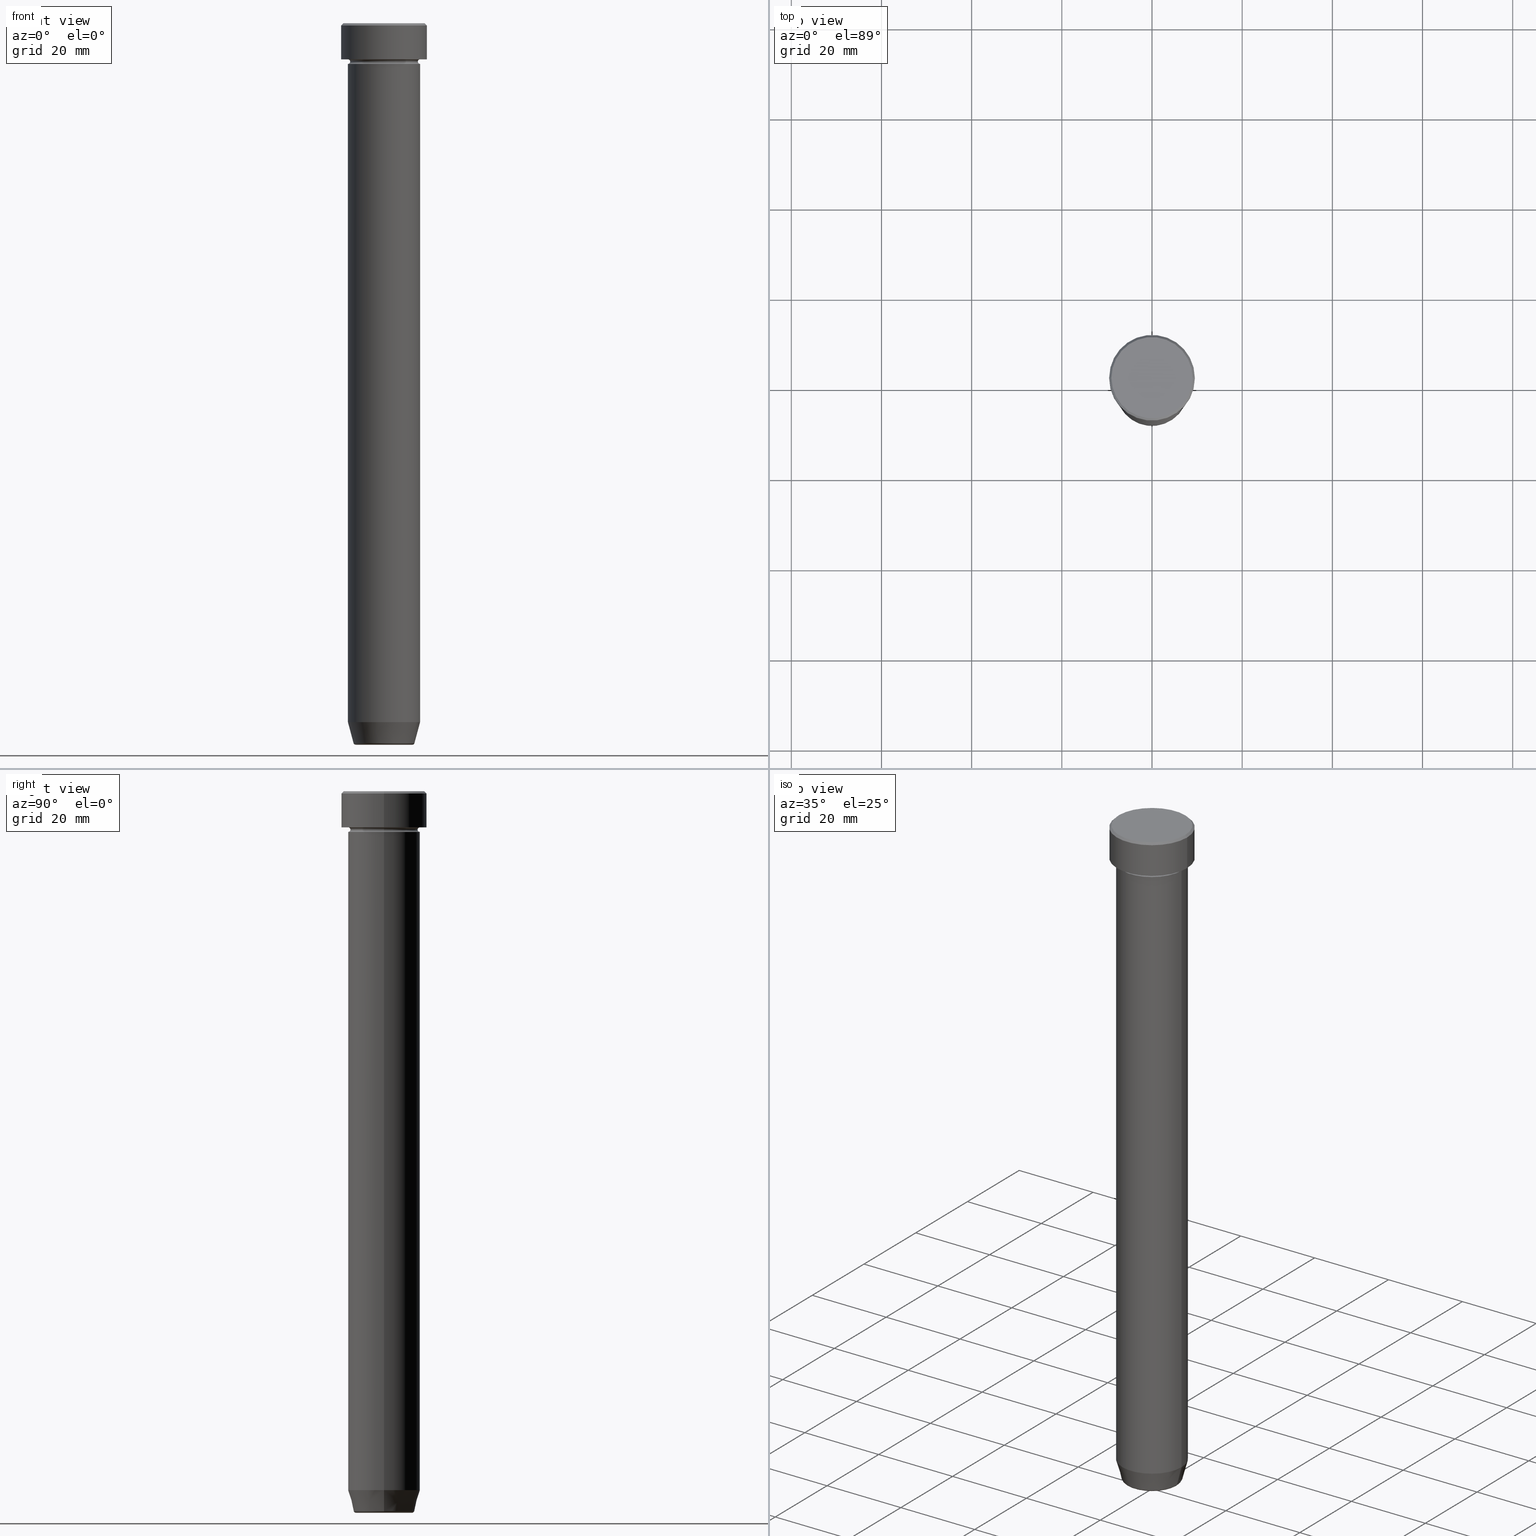
[diagram: canonical four-view strip — front | top / right | iso, engineering-drawing reading convention]
A machine part, canonical four-view strip (front | top / right | iso — engineering-drawing reading convention). The complete STEP part file that produces these views, byte-faithful:
ISO-10303-21;
HEADER;
FILE_DESCRIPTION (( 'STEP AP203' ),
    '1' );
FILE_NAME ('cf70.STEP',
    '2024-01-02T22:10:59',
    ( '' ),
    ( '' ),
    'SwSTEP 2.0',
    'SolidWorks 2019',
    '' );
FILE_SCHEMA (( 'CONFIG_CONTROL_DESIGN' ));
ENDSEC;

DATA;
#1 = DIRECTION ( 'NONE',  ( 0.000000000000000000, -0.000000000000000000, 1.000000000000000000 ) ) ;
#2 = EDGE_LOOP ( 'NONE', ( #141, #338, #187, #227 ) ) ;
#3 = APPROVAL_DATE_TIME ( #425, #263 ) ;
#4 = EDGE_CURVE ( 'NONE', #552, #230, #265, .T. ) ;
#5 = CIRCLE ( 'NONE', #16, 8.000000000000000000 ) ;
#6 = CARTESIAN_POINT ( 'NONE',  ( 8.000000000000000000, 0.000000000000000000, -154.9999999999999716 ) ) ;
#7 = ORIENTED_EDGE ( 'NONE', *, *, #578, .F. ) ;
#8 = APPROVAL_STATUS ( 'not_yet_approved' ) ;
#9 = AXIS2_PLACEMENT_3D ( 'NONE', #166, #439, #487 ) ;
#10 = LINE ( 'NONE', #169, #27 ) ;
#11 = AXIS2_PLACEMENT_3D ( 'NONE', #282, #469, #242 ) ;
#12 = VERTEX_POINT ( 'NONE', #194 ) ;
#13 = DIRECTION ( 'NONE',  ( 1.000000000000000000, 0.000000000000000000, 0.000000000000000000 ) ) ;
#14 = ADVANCED_FACE ( 'NONE', ( #288 ), #428, .T. ) ;
#15 = ORIENTED_EDGE ( 'NONE', *, *, #69, .F. ) ;
#16 = AXIS2_PLACEMENT_3D ( 'NONE', #333, #470, #521 ) ;
#17 = DIRECTION ( 'NONE',  ( 1.000000000000000000, 0.000000000000000000, 0.000000000000000000 ) ) ;
#18 = DIRECTION ( 'NONE',  ( 1.000000000000000000, 0.000000000000000000, 0.000000000000000000 ) ) ;
#19 = CARTESIAN_POINT ( 'NONE',  ( 0.000000000000000000, 0.000000000000000000, -8.500000000000000000 ) ) ;
#20 = EDGE_LOOP ( 'NONE', ( #427, #463, #328, #460 ) ) ;
#21 = ORIENTED_EDGE ( 'NONE', *, *, #273, .T. ) ;
#22 = EDGE_CURVE ( 'NONE', #556, #249, #5, .T. ) ;
#23 = CARTESIAN_POINT ( 'NONE',  ( 0.000000000000000000, 0.000000000000000000, -8.500000000000000000 ) ) ;
#24 = ORIENTED_EDGE ( 'NONE', *, *, #346, .F. ) ;
#25 = CC_DESIGN_PERSON_AND_ORGANIZATION_ASSIGNMENT ( #88, #372, ( #62 ) ) ;
#26 = LINE ( 'NONE', #117, #595 ) ;
#27 = VECTOR ( 'NONE', #323, 1000.000000000000000 ) ;
#28 = CIRCLE ( 'NONE', #270, 9.500000000000000000 ) ;
#29 = APPROVAL_DATE_TIME ( #361, #195 ) ;
#30 = CARTESIAN_POINT ( 'NONE',  ( -8.000000000000000000, 9.797174393178825657E-16, -22.00000000000000000 ) ) ;
#31 = EDGE_CURVE ( 'NONE', #453, #572, #150, .T. ) ;
#32 = CARTESIAN_POINT ( 'NONE',  ( 6.276590543854900339, 0.000000000000000000, -160.0000000000000000 ) ) ;
#33 = ORIENTED_EDGE ( 'NONE', *, *, #384, .T. ) ;
#34 = DIRECTION ( 'NONE',  ( -0.000000000000000000, -0.000000000000000000, 1.000000000000000000 ) ) ;
#35 = CIRCLE ( 'NONE', #596, 7.500000000000000000 ) ;
#36 = EDGE_CURVE ( 'NONE', #402, #475, #247, .T. ) ;
#37 = CARTESIAN_POINT ( 'NONE',  ( 0.000000000000000000, 0.000000000000000000, -8.000000000000000000 ) ) ;
#38 = DIRECTION ( 'NONE',  ( -1.224646799147353207E-16, 1.000000000000000000, 0.000000000000000000 ) ) ;
#39 = LINE ( 'NONE', #418, #196 ) ;
#40 = CARTESIAN_POINT ( 'NONE',  ( 0.000000000000000000, 0.000000000000000000, -8.500000000000000000 ) ) ;
#41 = EDGE_LOOP ( 'NONE', ( #283, #33, #410, #589 ) ) ;
#42 = DIRECTION ( 'NONE',  ( 1.000000000000000000, 0.000000000000000000, 0.000000000000000000 ) ) ;
#43 = CIRCLE ( 'NONE', #545, 9.500000000000000000 ) ;
#44 = CIRCLE ( 'NONE', #560, 0.5000000000000004441 ) ;
#45 = FACE_OUTER_BOUND ( 'NONE', #63, .T. ) ;
#46 = ORIENTED_EDGE ( 'NONE', *, *, #593, .T. ) ;
#47 = EDGE_CURVE ( 'NONE', #136, #269, #415, .T. ) ;
#48 = CARTESIAN_POINT ( 'NONE',  ( 0.000000000000000000, 0.000000000000000000, -8.500000000000000000 ) ) ;
#49 = ORIENTED_EDGE ( 'NONE', *, *, #543, .T. ) ;
#50 = DIRECTION ( 'NONE',  ( 1.000000000000000000, 0.000000000000000000, 0.000000000000000000 ) ) ;
#51 = EDGE_LOOP ( 'NONE', ( #131, #341 ) ) ;
#52 = EDGE_CURVE ( 'NONE', #532, #87, #303, .T. ) ;
#53 = CARTESIAN_POINT ( 'NONE',  ( 0.000000000000000000, 9.500000000000000000, -8.000000000000000000 ) ) ;
#54 = AXIS2_PLACEMENT_3D ( 'NONE', #262, #225, #343 ) ;
#55 = ORIENTED_EDGE ( 'NONE', *, *, #479, .T. ) ;
#56 = FACE_OUTER_BOUND ( 'NONE', #84, .T. ) ;
#57 = DIRECTION ( 'NONE',  ( 1.000000000000000000, 0.000000000000000000, 0.000000000000000000 ) ) ;
#58 = FACE_OUTER_BOUND ( 'NONE', #51, .T. ) ;
#59 = FACE_OUTER_BOUND ( 'NONE', #2, .T. ) ;
#60 = DIRECTION ( 'NONE',  ( -0.000000000000000000, -0.000000000000000000, 1.000000000000000000 ) ) ;
#61 = TOROIDAL_SURFACE ( 'NONE', #397, 8.000000000000000000, 0.5000000000000000000 ) ;
#62 = PRODUCT_DEFINITION_FORMATION_WITH_SPECIFIED_SOURCE ( 'LIBOVOLN�', '', #149, .NOT_KNOWN. ) ;
#63 = EDGE_LOOP ( 'NONE', ( #345, #98 ) ) ;
#64 = ADVANCED_FACE ( 'NONE', ( #59 ), #107, .T. ) ;
#65 = ORIENTED_EDGE ( 'NONE', *, *, #111, .F. ) ;
#66 = PERSON_AND_ORGANIZATION_ROLE ( 'creator' ) ;
#67 = ORIENTED_EDGE ( 'NONE', *, *, #292, .F. ) ;
#68 = APPLICATION_PROTOCOL_DEFINITION ( 'international standard', 'config_control_design', 1994, #153 ) ;
#69 = EDGE_CURVE ( 'NONE', #74, #556, #301, .T. ) ;
#70 = FACE_OUTER_BOUND ( 'NONE', #370, .T. ) ;
#71 = VECTOR ( 'NONE', #414, 999.9999999999998863 ) ;
#72 = TOROIDAL_SURFACE ( 'NONE', #503, 8.000000000000000000, 0.5000000000000000000 ) ;
#73 = CARTESIAN_POINT ( 'NONE',  ( -8.000000000000000000, 9.797174393178825657E-16, 0.000000000000000000 ) ) ;
#74 = VERTEX_POINT ( 'NONE', #158 ) ;
#75 = FACE_OUTER_BOUND ( 'NONE', #458, .T. ) ;
#76 = VECTOR ( 'NONE', #434, 1000.000000000000000 ) ;
#77 = CARTESIAN_POINT ( 'NONE',  ( 0.000000000000000000, 0.000000000000000000, 0.000000000000000000 ) ) ;
#78 = AXIS2_PLACEMENT_3D ( 'NONE', #401, #354, #213 ) ;
#79 = EDGE_CURVE ( 'NONE', #377, #402, #334, .T. ) ;
#80 = PERSON_AND_ORGANIZATION ( #585, #494 ) ;
#81 = CARTESIAN_POINT ( 'NONE',  ( -7.500000000000000000, 9.491012693391985815E-16, -8.500000000000000000 ) ) ;
#82 = DIRECTION ( 'NONE',  ( -1.000000000000000000, 1.224646799147353454E-16, 0.000000000000000000 ) ) ;
#83 = AXIS2_PLACEMENT_3D ( 'NONE', #243, #207, #482 ) ;
#84 = EDGE_LOOP ( 'NONE', ( #530, #321 ) ) ;
#85 = DIRECTION ( 'NONE',  ( 1.000000000000000000, 0.000000000000000000, 0.000000000000000000 ) ) ;
#86 = CC_DESIGN_PERSON_AND_ORGANIZATION_ASSIGNMENT ( #406, #66, ( #298 ) ) ;
#87 = VERTEX_POINT ( 'NONE', #344 ) ;
#88 = PERSON_AND_ORGANIZATION ( #585, #494 ) ;
#89 = VECTOR ( 'NONE', #252, 1000.000000000000000 ) ;
#90 = CIRCLE ( 'NONE', #483, 7.500000000000000000 ) ;
#91 = CARTESIAN_POINT ( 'NONE',  ( 0.000000000000000000, 0.000000000000000000, -22.00000000000000000 ) ) ;
#92 = ORIENTED_EDGE ( 'NONE', *, *, #52, .F. ) ;
#93 = CARTESIAN_POINT ( 'NONE',  ( 8.000000000000000000, 0.000000000000000000, -8.500000000000000000 ) ) ;
#94 = ORIENTED_EDGE ( 'NONE', *, *, #253, .F. ) ;
#95 = PERSON_AND_ORGANIZATION ( #585, #494 ) ;
#96 = ADVANCED_FACE ( 'NONE', ( #70 ), #254, .T. ) ;
#97 = DIRECTION ( 'NONE',  ( 0.000000000000000000, 0.000000000000000000, -1.000000000000000000 ) ) ;
#98 = ORIENTED_EDGE ( 'NONE', *, *, #186, .F. ) ;
#99 = AXIS2_PLACEMENT_3D ( 'NONE', #77, #295, #591 ) ;
#100 = FACE_OUTER_BOUND ( 'NONE', #509, .T. ) ;
#101 = LOCAL_TIME ( 23, 10, 59.00000000000000000, #393 ) ;
#102 = DIRECTION ( 'NONE',  ( 1.000000000000000000, 0.000000000000000000, 0.000000000000000000 ) ) ;
#103 = CARTESIAN_POINT ( 'NONE',  ( 0.000000000000000000, 0.000000000000000000, -8.500000000000000000 ) ) ;
#104 = ORIENTED_EDGE ( 'NONE', *, *, #253, .T. ) ;
#105 = CARTESIAN_POINT ( 'NONE',  ( -8.000000000000000000, 9.797174393178825657E-16, -154.9999999999999716 ) ) ;
#106 = ADVANCED_FACE ( 'NONE', ( #75 ), #122, .T. ) ;
#107 = CYLINDRICAL_SURFACE ( 'NONE', #83, 8.000000000000000000 ) ;
#108 = FACE_OUTER_BOUND ( 'NONE', #155, .T. ) ;
#109 = ORIENTED_EDGE ( 'NONE', *, *, #47, .T. ) ;
#110 = ORIENTED_EDGE ( 'NONE', *, *, #497, .T. ) ;
#111 = EDGE_CURVE ( 'NONE', #302, #413, #234, .T. ) ;
#112 = COORDINATED_UNIVERSAL_TIME_OFFSET ( 1, 0, .AHEAD. ) ;
#113 = DIRECTION ( 'NONE',  ( -1.000000000000000000, 0.000000000000000000, -0.000000000000000000 ) ) ;
#114 = CARTESIAN_POINT ( 'NONE',  ( 8.000000000000000000, 9.797174393178825657E-16, -8.500000000000000000 ) ) ;
#115 = DIRECTION ( 'NONE',  ( -0.000000000000000000, -0.000000000000000000, 1.000000000000000000 ) ) ;
#116 = AXIS2_PLACEMENT_3D ( 'NONE', #232, #451, #555 ) ;
#117 = CARTESIAN_POINT ( 'NONE',  ( -8.000000000000000000, 9.797174393178825657E-16, 0.000000000000000000 ) ) ;
#118 = ORIENTED_EDGE ( 'NONE', *, *, #472, .F. ) ;
#119 = CARTESIAN_POINT ( 'NONE',  ( -6.660254037844377528, 8.156458788954351887E-16, -160.0000000000000000 ) ) ;
#120 = EDGE_CURVE ( 'NONE', #566, #249, #495, .T. ) ;
#121 = CARTESIAN_POINT ( 'NONE',  ( 0.000000000000000000, 0.000000000000000000, -160.0000000000000000 ) ) ;
#122 = CONICAL_SURFACE ( 'NONE', #296, 6.660254037844377528, 0.2617993877991494633 ) ;
#123 = CC_DESIGN_SECURITY_CLASSIFICATION ( #476, ( #62 ) ) ;
#124 = CYLINDRICAL_SURFACE ( 'NONE', #297, 8.000000000000000000 ) ;
#125 = EDGE_LOOP ( 'NONE', ( #129, #109 ) ) ;
#126 = DATE_TIME_ROLE ( 'creation_date' ) ;
#127 = ADVANCED_FACE ( 'NONE', ( #167 ), #350, .T. ) ;
#128 = FACE_BOUND ( 'NONE', #367, .T. ) ;
#129 = ORIENTED_EDGE ( 'NONE', *, *, #281, .T. ) ;
#130 = DIRECTION ( 'NONE',  ( 0.000000000000000000, 0.000000000000000000, -1.000000000000000000 ) ) ;
#131 = ORIENTED_EDGE ( 'NONE', *, *, #52, .T. ) ;
#132 = COORDINATED_UNIVERSAL_TIME_OFFSET ( 1, 0, .AHEAD. ) ;
#133 = CIRCLE ( 'NONE', #256, 0.5000000000000004441 ) ;
#134 = LOCAL_TIME ( 23, 10, 59.00000000000000000, #112 ) ;
#135 = DIRECTION ( 'NONE',  ( 1.000000000000000000, 0.000000000000000000, 0.000000000000000000 ) ) ;
#136 = VERTEX_POINT ( 'NONE', #30 ) ;
#137 = FACE_OUTER_BOUND ( 'NONE', #579, .T. ) ;
#138 = ORIENTED_EDGE ( 'NONE', *, *, #587, .T. ) ;
#139 = CLOSED_SHELL ( 'NONE', ( #538, #14, #96, #165, #568, #106, #337, #438 ) ) ;
#140 = DIRECTION ( 'NONE',  ( -0.000000000000000000, -0.000000000000000000, 1.000000000000000000 ) ) ;
#141 = ORIENTED_EDGE ( 'NONE', *, *, #203, .F. ) ;
#142 = VECTOR ( 'NONE', #162, 1000.000000000000000 ) ;
#143 = DIRECTION ( 'NONE',  ( 1.000000000000000000, 0.000000000000000000, 0.000000000000000000 ) ) ;
#144 = LOCAL_TIME ( 23, 10, 59.00000000000000000, #567 ) ;
#145 = CARTESIAN_POINT ( 'NONE',  ( 0.000000000000000000, 0.000000000000000000, -22.00000000000000000 ) ) ;
#146 = EDGE_CURVE ( 'NONE', #552, #74, #307, .T. ) ;
#147 = CARTESIAN_POINT ( 'NONE',  ( -6.276590543854900339, 7.982336011935118383E-16, -160.0000000000000000 ) ) ;
#148 = ORIENTED_EDGE ( 'NONE', *, *, #400, .T. ) ;
#149 = PRODUCT ( 'cf70', 'cf70', '', ( #205 ) ) ;
#150 = CIRCLE ( 'NONE', #335, 8.000000000000000000 ) ;
#151 = DIRECTION ( 'NONE',  ( -0.000000000000000000, -0.000000000000000000, 1.000000000000000000 ) ) ;
#152 = DIRECTION ( 'NONE',  ( 1.000000000000000000, 0.000000000000000000, 0.000000000000000000 ) ) ;
#153 = APPLICATION_CONTEXT ( 'configuration controlled 3d designs of mechanical parts and assemblies' ) ;
#154 = DIRECTION ( 'NONE',  ( -1.000000000000000000, 0.000000000000000000, -0.000000000000000000 ) ) ;
#155 = EDGE_LOOP ( 'NONE', ( #486, #576, #233, #94 ) ) ;
#156 = EDGE_CURVE ( 'NONE', #572, #453, #467, .T. ) ;
#157 = CARTESIAN_POINT ( 'NONE',  ( 0.000000000000000000, 0.000000000000000000, -154.9999999999999716 ) ) ;
#158 = CARTESIAN_POINT ( 'NONE',  ( -6.759553456999434218, 9.037619948979304241E-16, -159.6294095225512422 ) ) ;
#159 = APPROVAL ( #8, 'NEUR�EN�' ) ;
#160 = DIRECTION ( 'NONE',  ( 0.000000000000000000, 0.000000000000000000, 1.000000000000000000 ) ) ;
#161 = FACE_OUTER_BOUND ( 'NONE', #512, .T. ) ;
#162 = DIRECTION ( 'NONE',  ( -0.000000000000000000, -0.000000000000000000, 1.000000000000000000 ) ) ;
#163 = CIRCLE ( 'NONE', #316, 0.5000000000000004441 ) ;
#164 = AXIS2_PLACEMENT_3D ( 'NONE', #575, #466, #245 ) ;
#165 = ADVANCED_FACE ( 'NONE', ( #399 ), #394, .F. ) ;
#166 = CARTESIAN_POINT ( 'NONE',  ( 0.000000000000000000, 0.000000000000000000, -8.000000000000000000 ) ) ;
#167 = FACE_OUTER_BOUND ( 'NONE', #258, .T. ) ;
#168 = CARTESIAN_POINT ( 'NONE',  ( 6.759553456999434218, 0.000000000000000000, -159.6294095225512422 ) ) ;
#169 = CARTESIAN_POINT ( 'NONE',  ( 9.500000000000000000, 0.000000000000000000, 0.000000000000000000 ) ) ;
#170 = VERTEX_POINT ( 'NONE', #304 ) ;
#171 = AXIS2_PLACEMENT_3D ( 'NONE', #37, #592, #355 ) ;
#172 = EDGE_CURVE ( 'NONE', #475, #353, #43, .T. ) ;
#173 = CIRCLE ( 'NONE', #546, 8.000000000000000000 ) ;
#174 = DIRECTION ( 'NONE',  ( -0.000000000000000000, -0.000000000000000000, 1.000000000000000000 ) ) ;
#175 = CARTESIAN_POINT ( 'NONE',  ( -8.000000000000000000, 0.000000000000000000, -8.000000000000000000 ) ) ;
#176 = ORIENTED_EDGE ( 'NONE', *, *, #4, .T. ) ;
#177 = APPROVAL_STATUS ( 'not_yet_approved' ) ;
#178 = CARTESIAN_POINT ( 'NONE',  ( 9.500000000000000000, 0.000000000000000000, -0.4999999999999968914 ) ) ;
#179 = EDGE_LOOP ( 'NONE', ( #199, #419, #349, #424 ) ) ;
#180 = PERSON_AND_ORGANIZATION_ROLE ( 'creator' ) ;
#181 = FACE_OUTER_BOUND ( 'NONE', #598, .T. ) ;
#182 = ORIENTED_EDGE ( 'NONE', *, *, #146, .T. ) ;
#183 = APPLICATION_CONTEXT ( 'configuration controlled 3d designs of mechanical parts and assemblies' ) ;
#184 = AXIS2_PLACEMENT_3D ( 'NONE', #559, #362, #274 ) ;
#185 = LINE ( 'NONE', #229, #71 ) ;
#186 = EDGE_CURVE ( 'NONE', #402, #377, #206, .T. ) ;
#187 = ORIENTED_EDGE ( 'NONE', *, *, #231, .T. ) ;
#188 = APPROVAL_ROLE ( '' ) ;
#189 = PLANE ( 'NONE',  #280 ) ;
#190 = PRODUCT_DEFINITION_SHAPE ( 'NONE', 'NONE',  #298 ) ;
#191 = ORIENTED_EDGE ( 'NONE', *, *, #120, .F. ) ;
#192 = AXIS2_PLACEMENT_3D ( 'NONE', #286, #515, #18 ) ;
#193 = CARTESIAN_POINT ( 'NONE',  ( -8.000000000000000000, 9.797174393178825657E-16, -22.00000000000000000 ) ) ;
#194 = CARTESIAN_POINT ( 'NONE',  ( 7.500000000000000000, 0.000000000000000000, -8.500000000000000000 ) ) ;
#195 = APPROVAL ( #177, 'NEUR�EN�' ) ;
#196 = VECTOR ( 'NONE', #218, 1000.000000000000000 ) ;
#197 = AXIS2_PLACEMENT_3D ( 'NONE', #287, #60, #17 ) ;
#198 = CARTESIAN_POINT ( 'NONE',  ( 0.000000000000000000, 0.000000000000000000, -8.500000000000000000 ) ) ;
#199 = ORIENTED_EDGE ( 'NONE', *, *, #79, .T. ) ;
#200 = DIRECTION ( 'NONE',  ( 0.000000000000000000, 0.000000000000000000, -1.000000000000000000 ) ) ;
#201 = ORIENTED_EDGE ( 'NONE', *, *, #156, .T. ) ;
#202 = CARTESIAN_POINT ( 'NONE',  ( 6.276590543854900339, 0.000000000000000000, -159.5000000000000000 ) ) ;
#203 = EDGE_CURVE ( 'NONE', #453, #468, #26, .T. ) ;
#204 = VERTEX_POINT ( 'NONE', #81 ) ;
#205 = MECHANICAL_CONTEXT ( 'NONE', #153, 'mechanical' ) ;
#206 = CIRCLE ( 'NONE', #171, 9.500000000000000000 ) ;
#207 = DIRECTION ( 'NONE',  ( -0.000000000000000000, -0.000000000000000000, 1.000000000000000000 ) ) ;
#208 = CARTESIAN_POINT ( 'NONE',  ( 0.000000000000000000, 0.000000000000000000, 0.000000000000000000 ) ) ;
#209 = DIRECTION ( 'NONE',  ( -0.2588190451025207950, 3.169619151431764941E-17, 0.9659258262890683122 ) ) ;
#210 = CARTESIAN_POINT ( 'NONE',  ( 0.000000000000000000, 0.000000000000000000, -22.00000000000000000 ) ) ;
#211 = ORIENTED_EDGE ( 'NONE', *, *, #432, .T. ) ;
#212 = ADVANCED_FACE ( 'NONE', ( #161 ), #348, .T. ) ;
#213 = DIRECTION ( 'NONE',  ( -1.000000000000000000, 1.224646799147351482E-16, 0.000000000000000000 ) ) ;
#214 = CIRCLE ( 'NONE', #184, 8.000000000000000000 ) ;
#215 = LOCAL_TIME ( 23, 10, 59.00000000000000000, #132 ) ;
#216 = DIRECTION ( 'NONE',  ( 1.000000000000000000, 0.000000000000000000, 0.000000000000000000 ) ) ;
#217 = DIRECTION ( 'NONE',  ( 1.000000000000000000, 0.000000000000000000, 0.000000000000000000 ) ) ;
#218 = DIRECTION ( 'NONE',  ( -0.000000000000000000, -0.000000000000000000, 1.000000000000000000 ) ) ;
#219 = EDGE_CURVE ( 'NONE', #556, #136, #485, .T. ) ;
#220 = APPLICATION_PROTOCOL_DEFINITION ( 'international standard', 'config_control_design', 1994, #183 ) ;
#221 = DIRECTION ( 'NONE',  ( 0.000000000000000000, 0.000000000000000000, -1.000000000000000000 ) ) ;
#222 = AXIS2_PLACEMENT_3D ( 'NONE', #264, #501, #85 ) ;
#223 = ORIENTED_EDGE ( 'NONE', *, *, #326, .F. ) ;
#224 = TOROIDAL_SURFACE ( 'NONE', #197, 6.276590543854900339, 0.5000000000000000000 ) ;
#225 = DIRECTION ( 'NONE',  ( -0.000000000000000000, -0.000000000000000000, 1.000000000000000000 ) ) ;
#226 = PLANE ( 'NONE',  #558 ) ;
#227 = ORIENTED_EDGE ( 'NONE', *, *, #374, .F. ) ;
#228 = DATE_AND_TIME ( #319, #215 ) ;
#229 = CARTESIAN_POINT ( 'NONE',  ( 9.000000000000001776, 1.102182119232617911E-15, 0.000000000000000000 ) ) ;
#230 = VERTEX_POINT ( 'NONE', #32 ) ;
#231 = EDGE_CURVE ( 'NONE', #572, #170, #395, .T. ) ;
#232 = CARTESIAN_POINT ( 'NONE',  ( 0.000000000000000000, 0.000000000000000000, 0.000000000000000000 ) ) ;
#233 = ORIENTED_EDGE ( 'NONE', *, *, #445, .T. ) ;
#234 = CIRCLE ( 'NONE', #493, 8.000000000000000000 ) ;
#235 = TOROIDAL_SURFACE ( 'NONE', #11, 6.276590543854900339, 0.5000000000000000000 ) ;
#236 = PRODUCT_RELATED_PRODUCT_CATEGORY ( 'detail', '', ( #149 ) ) ;
#237 = DIRECTION ( 'NONE',  ( 0.000000000000000000, 0.000000000000000000, -1.000000000000000000 ) ) ;
#238 = ORIENTED_EDGE ( 'NONE', *, *, #231, .F. ) ;
#239 = DIRECTION ( 'NONE',  ( 1.000000000000000000, 0.000000000000000000, 0.000000000000000000 ) ) ;
#240 = EDGE_CURVE ( 'NONE', #87, #532, #268, .T. ) ;
#241 = DIRECTION ( 'NONE',  ( -0.000000000000000000, -0.000000000000000000, 1.000000000000000000 ) ) ;
#242 = DIRECTION ( 'NONE',  ( 1.000000000000000000, 0.000000000000000000, 0.000000000000000000 ) ) ;
#243 = CARTESIAN_POINT ( 'NONE',  ( 0.000000000000000000, 0.000000000000000000, 0.000000000000000000 ) ) ;
#244 = AXIS2_PLACEMENT_3D ( 'NONE', #369, #456, #261 ) ;
#245 = DIRECTION ( 'NONE',  ( -1.000000000000000000, 0.000000000000000000, -0.000000000000000000 ) ) ;
#246 = DIRECTION ( 'NONE',  ( -0.000000000000000000, -0.000000000000000000, 1.000000000000000000 ) ) ;
#247 = LINE ( 'NONE', #430, #76 ) ;
#248 =( LENGTH_UNIT ( ) NAMED_UNIT ( * ) SI_UNIT ( .MILLI., .METRE. ) );
#249 = VERTEX_POINT ( 'NONE', #6 ) ;
#250 = AXIS2_PLACEMENT_3D ( 'NONE', #422, #151, #378 ) ;
#251 = DIRECTION ( 'NONE',  ( -0.000000000000000000, -0.000000000000000000, 1.000000000000000000 ) ) ;
#252 = DIRECTION ( 'NONE',  ( -0.000000000000000000, -0.000000000000000000, 1.000000000000000000 ) ) ;
#253 = EDGE_CURVE ( 'NONE', #74, #566, #329, .T. ) ;
#254 = CYLINDRICAL_SURFACE ( 'NONE', #99, 8.000000000000000000 ) ;
#255 = DIRECTION ( 'NONE',  ( 0.000000000000000000, 0.000000000000000000, -1.000000000000000000 ) ) ;
#256 = AXIS2_PLACEMENT_3D ( 'NONE', #93, #357, #408 ) ;
#257 = CIRCLE ( 'NONE', #250, 8.000000000000000000 ) ;
#258 = EDGE_LOOP ( 'NONE', ( #67, #92, #55, #7 ) ) ;
#259 = APPROVAL_STATUS ( 'not_yet_approved' ) ;
#260 = ADVANCED_FACE ( 'NONE', ( #547 ), #72, .F. ) ;
#261 = DIRECTION ( 'NONE',  ( 0.000000000000000000, 0.000000000000000000, -1.000000000000000000 ) ) ;
#262 = CARTESIAN_POINT ( 'NONE',  ( 0.000000000000000000, 0.000000000000000000, 0.000000000000000000 ) ) ;
#263 = APPROVAL ( #259, 'NEUR�EN�' ) ;
#264 = CARTESIAN_POINT ( 'NONE',  ( 0.000000000000000000, 0.000000000000000000, 0.000000000000000000 ) ) ;
#265 = CIRCLE ( 'NONE', #192, 6.276590543854900339 ) ;
#266 = ORIENTED_EDGE ( 'NONE', *, *, #543, .F. ) ;
#267 = CARTESIAN_POINT ( 'NONE',  ( 8.000000000000000000, 9.797174393178825657E-16, -8.000000000000000000 ) ) ;
#268 = CIRCLE ( 'NONE', #279, 9.000000000000001776 ) ;
#269 = VERTEX_POINT ( 'NONE', #511 ) ;
#270 = AXIS2_PLACEMENT_3D ( 'NONE', #390, #533, #42 ) ;
#271 = DIRECTION ( 'NONE',  ( 1.000000000000000000, 0.000000000000000000, 0.000000000000000000 ) ) ;
#272 = ORIENTED_EDGE ( 'NONE', *, *, #186, .T. ) ;
#273 = EDGE_CURVE ( 'NONE', #377, #353, #10, .T. ) ;
#274 = DIRECTION ( 'NONE',  ( 1.000000000000000000, 0.000000000000000000, 0.000000000000000000 ) ) ;
#275 = ORIENTED_EDGE ( 'NONE', *, *, #384, .F. ) ;
#276 = PERSON_AND_ORGANIZATION_ROLE ( 'classification_officer' ) ;
#277 = LINE ( 'NONE', #577, #381 ) ;
#278 = ORIENTED_EDGE ( 'NONE', *, *, #593, .F. ) ;
#279 = AXIS2_PLACEMENT_3D ( 'NONE', #498, #459, #271 ) ;
#280 = AXIS2_PLACEMENT_3D ( 'NONE', #569, #376, #565 ) ;
#281 = EDGE_CURVE ( 'NONE', #269, #136, #358, .T. ) ;
#282 = CARTESIAN_POINT ( 'NONE',  ( 0.000000000000000000, 0.000000000000000000, -159.5000000000000000 ) ) ;
#283 = ORIENTED_EDGE ( 'NONE', *, *, #497, .F. ) ;
#284 = PERSON_AND_ORGANIZATION ( #585, #494 ) ;
#285 = CARTESIAN_POINT ( 'NONE',  ( -8.000000000000000000, 9.797174393178825657E-16, -9.000000000000001776 ) ) ;
#286 = CARTESIAN_POINT ( 'NONE',  ( 0.000000000000000000, 0.000000000000000000, -160.0000000000000000 ) ) ;
#287 = CARTESIAN_POINT ( 'NONE',  ( 0.000000000000000000, 0.000000000000000000, -159.5000000000000000 ) ) ;
#288 = FACE_OUTER_BOUND ( 'NONE', #294, .T. ) ;
#289 = CIRCLE ( 'NONE', #525, 6.276590543854900339 ) ;
#290 = FACE_OUTER_BOUND ( 'NONE', #324, .T. ) ;
#291 = DIRECTION ( 'NONE',  ( -0.000000000000000000, -0.000000000000000000, 1.000000000000000000 ) ) ;
#292 = EDGE_CURVE ( 'NONE', #87, #353, #185, .T. ) ;
#293 = DESIGN_CONTEXT ( 'detailed design', #183, 'design' ) ;
#294 = EDGE_LOOP ( 'NONE', ( #524, #491, #375, #191 ) ) ;
#295 = DIRECTION ( 'NONE',  ( -0.000000000000000000, -0.000000000000000000, 1.000000000000000000 ) ) ;
#296 = AXIS2_PLACEMENT_3D ( 'NONE', #121, #251, #391 ) ;
#297 = AXIS2_PLACEMENT_3D ( 'NONE', #544, #174, #454 ) ;
#298 = PRODUCT_DEFINITION ( 'NEZN�M�', '', #62, #293 ) ;
#299 = DIRECTION ( 'NONE',  ( 1.000000000000000000, 0.000000000000000000, 0.000000000000000000 ) ) ;
#300 = ORIENTED_EDGE ( 'NONE', *, *, #326, .T. ) ;
#301 = LINE ( 'NONE', #119, #553 ) ;
#302 = VERTEX_POINT ( 'NONE', #267 ) ;
#303 = CIRCLE ( 'NONE', #322, 9.000000000000001776 ) ;
#304 = CARTESIAN_POINT ( 'NONE',  ( 8.000000000000000000, 0.000000000000000000, -9.000000000000001776 ) ) ;
#305 = ADVANCED_FACE ( 'NONE', ( #563 ), #366, .T. ) ;
#306 = DIRECTION ( 'NONE',  ( 0.2588190451025207950, 0.000000000000000000, 0.9659258262890683122 ) ) ;
#307 = CIRCLE ( 'NONE', #78, 0.5000000000000004441 ) ;
#308 = TOROIDAL_SURFACE ( 'NONE', #527, 8.000000000000000000, 0.5000000000000000000 ) ;
#309 = CARTESIAN_POINT ( 'NONE',  ( 0.000000000000000000, 1.347111479062088839E-14, -160.0000000000000000 ) ) ;
#310 = ORIENTED_EDGE ( 'NONE', *, *, #578, .T. ) ;
#311 = FACE_OUTER_BOUND ( 'NONE', #20, .T. ) ;
#312 = CARTESIAN_POINT ( 'NONE',  ( -8.000000000000000000, 9.797174393178825657E-16, -8.500000000000000000 ) ) ;
#313 = EDGE_LOOP ( 'NONE', ( #201, #317, #481, #238 ) ) ;
#314 = DIRECTION ( 'NONE',  ( -1.000000000000000000, 0.000000000000000000, 0.000000000000000000 ) ) ;
#315 = ADVANCED_FACE ( 'NONE', ( #181 ), #431, .T. ) ;
#316 = AXIS2_PLACEMENT_3D ( 'NONE', #312, #320, #82 ) ;
#317 = ORIENTED_EDGE ( 'NONE', *, *, #203, .T. ) ;
#318 = APPROVAL_PERSON_ORGANIZATION ( #550, #195, #441 ) ;
#319 = CALENDAR_DATE ( 2024, 2, 1 ) ;
#320 = DIRECTION ( 'NONE',  ( 1.224646799147353207E-16, 1.000000000000000000, 0.000000000000000000 ) ) ;
#321 = ORIENTED_EDGE ( 'NONE', *, *, #31, .F. ) ;
#322 = AXIS2_PLACEMENT_3D ( 'NONE', #331, #246, #57 ) ;
#323 = DIRECTION ( 'NONE',  ( -0.000000000000000000, -0.000000000000000000, 1.000000000000000000 ) ) ;
#324 = EDGE_LOOP ( 'NONE', ( #275, #266, #148, #416 ) ) ;
#325 = CALENDAR_DATE ( 2024, 2, 1 ) ;
#326 = EDGE_CURVE ( 'NONE', #204, #413, #570, .T. ) ;
#327 = DIRECTION ( 'NONE',  ( -1.000000000000000000, 0.000000000000000000, 0.000000000000000000 ) ) ;
#328 = ORIENTED_EDGE ( 'NONE', *, *, #346, .T. ) ;
#329 = CIRCLE ( 'NONE', #409, 6.759553456999434218 ) ;
#330 = TOROIDAL_SURFACE ( 'NONE', #484, 8.000000000000000000, 0.5000000000000000000 ) ;
#331 = CARTESIAN_POINT ( 'NONE',  ( 0.000000000000000000, 0.000000000000000000, 0.000000000000000000 ) ) ;
#332 = DIRECTION ( 'NONE',  ( -0.000000000000000000, -0.000000000000000000, 1.000000000000000000 ) ) ;
#333 = CARTESIAN_POINT ( 'NONE',  ( 0.000000000000000000, 0.000000000000000000, -154.9999999999999716 ) ) ;
#334 = CIRCLE ( 'NONE', #9, 9.500000000000000000 ) ;
#335 = AXIS2_PLACEMENT_3D ( 'NONE', #145, #241, #152 ) ;
#336 = PLANE ( 'NONE',  #164 ) ;
#337 = ADVANCED_FACE ( 'NONE', ( #137 ), #449, .F. ) ;
#338 = ORIENTED_EDGE ( 'NONE', *, *, #31, .T. ) ;
#339 = APPROVAL_PERSON_ORGANIZATION ( #95, #159, #188 ) ;
#340 = DIRECTION ( 'NONE',  ( -0.000000000000000000, -0.000000000000000000, 1.000000000000000000 ) ) ;
#341 = ORIENTED_EDGE ( 'NONE', *, *, #240, .T. ) ;
#342 = CC_DESIGN_PERSON_AND_ORGANIZATION_ASSIGNMENT ( #284, #180, ( #62 ) ) ;
#343 = DIRECTION ( 'NONE',  ( 1.000000000000000000, 0.000000000000000000, 0.000000000000000000 ) ) ;
#344 = CARTESIAN_POINT ( 'NONE',  ( 9.000000000000001776, 1.132798289211301698E-15, 0.000000000000000000 ) ) ;
#345 = ORIENTED_EDGE ( 'NONE', *, *, #79, .F. ) ;
#346 = EDGE_CURVE ( 'NONE', #249, #269, #39, .T. ) ;
#347 = CALENDAR_DATE ( 2024, 2, 1 ) ;
#348 = CYLINDRICAL_SURFACE ( 'NONE', #380, 9.500000000000000000 ) ;
#349 = ORIENTED_EDGE ( 'NONE', *, *, #172, .T. ) ;
#350 = CONICAL_SURFACE ( 'NONE', #407, 9.000000000000001776, 0.7853981633974501664 ) ;
#351 = CIRCLE ( 'NONE', #505, 8.000000000000000000 ) ;
#352 = DIRECTION ( 'NONE',  ( -0.000000000000000000, -0.000000000000000000, 1.000000000000000000 ) ) ;
#353 = VERTEX_POINT ( 'NONE', #178 ) ;
#354 = DIRECTION ( 'NONE',  ( 1.224646799147353207E-16, 1.000000000000000000, 0.000000000000000000 ) ) ;
#355 = DIRECTION ( 'NONE',  ( 1.000000000000000000, 0.000000000000000000, 0.000000000000000000 ) ) ;
#356 = ORIENTED_EDGE ( 'NONE', *, *, #445, .F. ) ;
#357 = DIRECTION ( 'NONE',  ( 0.000000000000000000, -1.000000000000000000, 0.000000000000000000 ) ) ;
#358 = CIRCLE ( 'NONE', #440, 8.000000000000000000 ) ;
#359 =( GEOMETRIC_REPRESENTATION_CONTEXT ( 3 ) GLOBAL_UNCERTAINTY_ASSIGNED_CONTEXT ( ( #528 ) ) GLOBAL_UNIT_ASSIGNED_CONTEXT ( ( #248, #437, #480 ) ) REPRESENTATION_CONTEXT ( 'NONE', 'WORKASPACE' ) );
#360 = ORIENTED_EDGE ( 'NONE', *, *, #219, .T. ) ;
#361 = DATE_AND_TIME ( #529, #134 ) ;
#362 = DIRECTION ( 'NONE',  ( -0.000000000000000000, -0.000000000000000000, 1.000000000000000000 ) ) ;
#363 = ORIENTED_EDGE ( 'NONE', *, *, #281, .F. ) ;
#364 = SECURITY_CLASSIFICATION_LEVEL ( 'unclassified' ) ;
#365 = CC_DESIGN_DATE_AND_TIME_ASSIGNMENT ( #492, #126, ( #298 ) ) ;
#366 = CYLINDRICAL_SURFACE ( 'NONE', #222, 9.500000000000000000 ) ;
#367 = EDGE_LOOP ( 'NONE', ( #574, #436 ) ) ;
#368 = CALENDAR_DATE ( 2024, 2, 1 ) ;
#369 = CARTESIAN_POINT ( 'NONE',  ( -8.000000000000000000, 0.000000000000000000, -8.500000000000000000 ) ) ;
#370 = EDGE_LOOP ( 'NONE', ( #138, #360, #363, #24 ) ) ;
#371 = AXIS2_PLACEMENT_3D ( 'NONE', #208, #160, #450 ) ;
#372 = PERSON_AND_ORGANIZATION_ROLE ( 'design_supplier' ) ;
#373 = DIRECTION ( 'NONE',  ( -0.000000000000000000, -0.000000000000000000, 1.000000000000000000 ) ) ;
#374 = EDGE_CURVE ( 'NONE', #468, #170, #214, .T. ) ;
#375 = ORIENTED_EDGE ( 'NONE', *, *, #587, .F. ) ;
#376 = DIRECTION ( 'NONE',  ( 0.000000000000000000, -0.000000000000000000, 1.000000000000000000 ) ) ;
#377 = VERTEX_POINT ( 'NONE', #405 ) ;
#378 = DIRECTION ( 'NONE',  ( 1.000000000000000000, 0.000000000000000000, 0.000000000000000000 ) ) ;
#379 = ORIENTED_EDGE ( 'NONE', *, *, #172, .F. ) ;
#380 = AXIS2_PLACEMENT_3D ( 'NONE', #534, #115, #299 ) ;
#381 = VECTOR ( 'NONE', #471, 999.9999999999998863 ) ;
#382 = DIRECTION ( 'NONE',  ( 0.000000000000000000, -1.000000000000000000, 0.000000000000000000 ) ) ;
#383 = ORIENTED_EDGE ( 'NONE', *, *, #240, .F. ) ;
#384 = EDGE_CURVE ( 'NONE', #204, #468, #163, .T. ) ;
#385 = DIRECTION ( 'NONE',  ( 1.000000000000000000, 0.000000000000000000, 0.000000000000000000 ) ) ;
#386 = EDGE_LOOP ( 'NONE', ( #110, #46, #118, #223 ) ) ;
#387 = DIRECTION ( 'NONE',  ( -0.000000000000000000, -0.000000000000000000, 1.000000000000000000 ) ) ;
#388 = DIRECTION ( 'NONE',  ( 1.000000000000000000, 0.000000000000000000, 0.000000000000000000 ) ) ;
#389 = CC_DESIGN_APPROVAL ( #159, ( #476 ) ) ;
#390 = CARTESIAN_POINT ( 'NONE',  ( 0.000000000000000000, 0.000000000000000000, -0.4999999999999968914 ) ) ;
#391 = DIRECTION ( 'NONE',  ( 1.000000000000000000, 0.000000000000000000, 0.000000000000000000 ) ) ;
#392 = ADVANCED_FACE ( 'NONE', ( #508 ), #61, .F. ) ;
#393 = COORDINATED_UNIVERSAL_TIME_OFFSET ( 1, 0, .AHEAD. ) ;
#394 = PLANE ( 'NONE',  #535 ) ;
#395 = LINE ( 'NONE', #588, #142 ) ;
#396 = ORIENTED_EDGE ( 'NONE', *, *, #4, .F. ) ;
#397 = AXIS2_PLACEMENT_3D ( 'NONE', #40, #221, #314 ) ;
#398 = LOCAL_TIME ( 23, 10, 59.00000000000000000, #403 ) ;
#399 = FACE_OUTER_BOUND ( 'NONE', #125, .T. ) ;
#400 = EDGE_CURVE ( 'NONE', #12, #170, #133, .T. ) ;
#401 = CARTESIAN_POINT ( 'NONE',  ( -6.276590543854900339, 7.686606519090449012E-16, -159.5000000000000000 ) ) ;
#402 = VERTEX_POINT ( 'NONE', #597 ) ;
#403 = COORDINATED_UNIVERSAL_TIME_OFFSET ( 1, 0, .AHEAD. ) ;
#404 = CC_DESIGN_DATE_AND_TIME_ASSIGNMENT ( #557, #464, ( #476 ) ) ;
#405 = CARTESIAN_POINT ( 'NONE',  ( 9.500000000000000000, 0.000000000000000000, -8.000000000000000000 ) ) ;
#406 = PERSON_AND_ORGANIZATION ( #585, #494 ) ;
#407 = AXIS2_PLACEMENT_3D ( 'NONE', #539, #582, #443 ) ;
#408 = DIRECTION ( 'NONE',  ( 0.000000000000000000, 0.000000000000000000, -1.000000000000000000 ) ) ;
#409 = AXIS2_PLACEMENT_3D ( 'NONE', #462, #504, #551 ) ;
#410 = ORIENTED_EDGE ( 'NONE', *, *, #374, .T. ) ;
#411 = CC_DESIGN_PERSON_AND_ORGANIZATION_ASSIGNMENT ( #599, #581, ( #149 ) ) ;
#412 = DIRECTION ( 'NONE',  ( -1.000000000000000000, 0.000000000000000000, 0.000000000000000000 ) ) ;
#413 = VERTEX_POINT ( 'NONE', #175 ) ;
#414 = DIRECTION ( 'NONE',  ( 0.7071067811865489050, 8.659560562354950115E-17, -0.7071067811865462405 ) ) ;
#415 = CIRCLE ( 'NONE', #489, 8.000000000000000000 ) ;
#416 = ORIENTED_EDGE ( 'NONE', *, *, #488, .T. ) ;
#417 = ADVANCED_FACE ( 'NONE', ( #128, #45 ), #226, .T. ) ;
#418 = CARTESIAN_POINT ( 'NONE',  ( 8.000000000000000000, 0.000000000000000000, 0.000000000000000000 ) ) ;
#419 = ORIENTED_EDGE ( 'NONE', *, *, #36, .T. ) ;
#420 = CIRCLE ( 'NONE', #516, 6.759553456999434218 ) ;
#421 = APPROVAL_DATE_TIME ( #228, #159 ) ;
#422 = CARTESIAN_POINT ( 'NONE',  ( 0.000000000000000000, 0.000000000000000000, -9.000000000000001776 ) ) ;
#423 = CC_DESIGN_PERSON_AND_ORGANIZATION_ASSIGNMENT ( #554, #276, ( #476 ) ) ;
#424 = ORIENTED_EDGE ( 'NONE', *, *, #273, .F. ) ;
#425 = DATE_AND_TIME ( #325, #398 ) ;
#426 = CARTESIAN_POINT ( 'NONE',  ( 0.000000000000000000, 0.000000000000000000, -8.000000000000000000 ) ) ;
#427 = ORIENTED_EDGE ( 'NONE', *, *, #219, .F. ) ;
#428 = CONICAL_SURFACE ( 'NONE', #522, 6.660254037844377528, 0.2617993877991494633 ) ;
#429 = DIRECTION ( 'NONE',  ( -0.000000000000000000, -0.000000000000000000, 1.000000000000000000 ) ) ;
#430 = CARTESIAN_POINT ( 'NONE',  ( -9.500000000000000000, 1.163414459189985485E-15, 0.000000000000000000 ) ) ;
#431 = CONICAL_SURFACE ( 'NONE', #116, 9.000000000000001776, 0.7853981633974501664 ) ;
#432 = EDGE_CURVE ( 'NONE', #230, #552, #289, .T. ) ;
#433 = FACE_OUTER_BOUND ( 'NONE', #41, .T. ) ;
#434 = DIRECTION ( 'NONE',  ( -0.000000000000000000, -0.000000000000000000, 1.000000000000000000 ) ) ;
#435 = DIRECTION ( 'NONE',  ( -1.000000000000000000, 0.000000000000000000, 0.000000000000000000 ) ) ;
#436 = ORIENTED_EDGE ( 'NONE', *, *, #111, .T. ) ;
#437 =( NAMED_UNIT ( * ) PLANE_ANGLE_UNIT ( ) SI_UNIT ( $, .RADIAN. ) );
#438 = ADVANCED_FACE ( 'NONE', ( #108 ), #224, .T. ) ;
#439 = DIRECTION ( 'NONE',  ( -0.000000000000000000, -0.000000000000000000, 1.000000000000000000 ) ) ;
#440 = AXIS2_PLACEMENT_3D ( 'NONE', #91, #373, #50 ) ;
#441 = APPROVAL_ROLE ( '' ) ;
#442 = CARTESIAN_POINT ( 'NONE',  ( 6.660254037844377528, 0.000000000000000000, -160.0000000000000000 ) ) ;
#443 = DIRECTION ( 'NONE',  ( -1.000000000000000000, 0.000000000000000000, 0.000000000000000000 ) ) ;
#444 = DIRECTION ( 'NONE',  ( -1.000000000000000000, 0.000000000000000000, 0.000000000000000000 ) ) ;
#445 = EDGE_CURVE ( 'NONE', #230, #566, #44, .T. ) ;
#446 = VECTOR ( 'NONE', #306, 1000.000000000000114 ) ;
#447 = DIRECTION ( 'NONE',  ( 1.000000000000000000, 0.000000000000000000, 0.000000000000000000 ) ) ;
#448 = APPROVAL_ROLE ( '' ) ;
#449 = PLANE ( 'NONE',  #455 ) ;
#450 = DIRECTION ( 'NONE',  ( 1.000000000000000000, 0.000000000000000000, 0.000000000000000000 ) ) ;
#451 = DIRECTION ( 'NONE',  ( 0.000000000000000000, 0.000000000000000000, -1.000000000000000000 ) ) ;
#452 = ADVANCED_FACE ( 'NONE', ( #56 ), #336, .T. ) ;
#453 = VERTEX_POINT ( 'NONE', #193 ) ;
#454 = DIRECTION ( 'NONE',  ( 1.000000000000000000, 0.000000000000000000, 0.000000000000000000 ) ) ;
#455 = AXIS2_PLACEMENT_3D ( 'NONE', #309, #1, #135 ) ;
#456 = DIRECTION ( 'NONE',  ( -0.000000000000000000, -1.000000000000000000, -0.000000000000000000 ) ) ;
#457 = CC_DESIGN_APPROVAL ( #195, ( #298 ) ) ;
#458 = EDGE_LOOP ( 'NONE', ( #15, #104, #502, #541 ) ) ;
#459 = DIRECTION ( 'NONE',  ( -0.000000000000000000, -0.000000000000000000, 1.000000000000000000 ) ) ;
#460 = ORIENTED_EDGE ( 'NONE', *, *, #47, .F. ) ;
#461 = SHAPE_DEFINITION_REPRESENTATION ( #190, #507 ) ;
#462 = CARTESIAN_POINT ( 'NONE',  ( 0.000000000000000000, 0.000000000000000000, -159.6294095225512422 ) ) ;
#463 = ORIENTED_EDGE ( 'NONE', *, *, #22, .T. ) ;
#464 = DATE_TIME_ROLE ( 'classification_date' ) ;
#465 = ADVANCED_FACE ( 'NONE', ( #433 ), #308, .F. ) ;
#466 = DIRECTION ( 'NONE',  ( 0.000000000000000000, 0.000000000000000000, -1.000000000000000000 ) ) ;
#467 = CIRCLE ( 'NONE', #514, 8.000000000000000000 ) ;
#468 = VERTEX_POINT ( 'NONE', #285 ) ;
#469 = DIRECTION ( 'NONE',  ( -0.000000000000000000, -0.000000000000000000, 1.000000000000000000 ) ) ;
#470 = DIRECTION ( 'NONE',  ( -0.000000000000000000, -0.000000000000000000, 1.000000000000000000 ) ) ;
#471 = DIRECTION ( 'NONE',  ( -0.7071067811865489050, 0.000000000000000000, -0.7071067811865462405 ) ) ;
#472 = EDGE_CURVE ( 'NONE', #413, #302, #173, .T. ) ;
#473 = DIRECTION ( 'NONE',  ( -0.000000000000000000, -0.000000000000000000, 1.000000000000000000 ) ) ;
#474 = CARTESIAN_POINT ( 'NONE',  ( -9.500000000000000000, 1.163414459189985485E-15, -0.4999999999999968914 ) ) ;
#475 = VERTEX_POINT ( 'NONE', #474 ) ;
#476 = SECURITY_CLASSIFICATION ( '', '', #364 ) ;
#477 = DIRECTION ( 'NONE',  ( -0.000000000000000000, -0.000000000000000000, 1.000000000000000000 ) ) ;
#478 = CARTESIAN_POINT ( 'NONE',  ( 0.000000000000000000, 0.000000000000000000, -22.00000000000000000 ) ) ;
#479 = EDGE_CURVE ( 'NONE', #532, #475, #277, .T. ) ;
#480 =( NAMED_UNIT ( * ) SI_UNIT ( $, .STERADIAN. ) SOLID_ANGLE_UNIT ( ) );
#481 = ORIENTED_EDGE ( 'NONE', *, *, #488, .F. ) ;
#482 = DIRECTION ( 'NONE',  ( 1.000000000000000000, 0.000000000000000000, 0.000000000000000000 ) ) ;
#483 = AXIS2_PLACEMENT_3D ( 'NONE', #198, #429, #573 ) ;
#484 = AXIS2_PLACEMENT_3D ( 'NONE', #23, #332, #143 ) ;
#485 = LINE ( 'NONE', #73, #89 ) ;
#486 = ORIENTED_EDGE ( 'NONE', *, *, #146, .F. ) ;
#487 = DIRECTION ( 'NONE',  ( 1.000000000000000000, 0.000000000000000000, 0.000000000000000000 ) ) ;
#488 = EDGE_CURVE ( 'NONE', #170, #468, #257, .T. ) ;
#489 = AXIS2_PLACEMENT_3D ( 'NONE', #478, #473, #388 ) ;
#490 = CARTESIAN_POINT ( 'NONE',  ( 0.000000000000000000, 0.000000000000000000, -0.4999999999999968914 ) ) ;
#491 = ORIENTED_EDGE ( 'NONE', *, *, #69, .T. ) ;
#492 = DATE_AND_TIME ( #347, #101 ) ;
#493 = AXIS2_PLACEMENT_3D ( 'NONE', #542, #34, #444 ) ;
#494 = ORGANIZATION ( 'NEUR�EN�', 'NEUR�EN�', '' ) ;
#495 = LINE ( 'NONE', #442, #446 ) ;
#496 = DIRECTION ( 'NONE',  ( -1.000000000000000000, -1.224646799147353454E-16, 0.000000000000000000 ) ) ;
#497 = EDGE_CURVE ( 'NONE', #204, #12, #35, .T. ) ;
#498 = CARTESIAN_POINT ( 'NONE',  ( 0.000000000000000000, 0.000000000000000000, 0.000000000000000000 ) ) ;
#499 = ORIENTED_EDGE ( 'NONE', *, *, #526, .F. ) ;
#500 = CARTESIAN_POINT ( 'NONE',  ( 8.000000000000000000, 0.000000000000000000, -22.00000000000000000 ) ) ;
#501 = DIRECTION ( 'NONE',  ( -0.000000000000000000, -0.000000000000000000, 1.000000000000000000 ) ) ;
#502 = ORIENTED_EDGE ( 'NONE', *, *, #120, .T. ) ;
#503 = AXIS2_PLACEMENT_3D ( 'NONE', #48, #130, #412 ) ;
#504 = DIRECTION ( 'NONE',  ( -0.000000000000000000, -0.000000000000000000, 1.000000000000000000 ) ) ;
#505 = AXIS2_PLACEMENT_3D ( 'NONE', #157, #594, #217 ) ;
#506 = ORIENTED_EDGE ( 'NONE', *, *, #479, .F. ) ;
#507 = ADVANCED_BREP_SHAPE_REPRESENTATION ( 'cf70', ( #548, #537, #371 ), #359 ) ;
#508 = FACE_OUTER_BOUND ( 'NONE', #549, .T. ) ;
#509 = EDGE_LOOP ( 'NONE', ( #396, #182, #499, #356 ) ) ;
#510 = ADVANCED_FACE ( 'NONE', ( #58 ), #189, .T. ) ;
#511 = CARTESIAN_POINT ( 'NONE',  ( 8.000000000000000000, 0.000000000000000000, -22.00000000000000000 ) ) ;
#512 = EDGE_LOOP ( 'NONE', ( #564, #272, #21, #310 ) ) ;
#513 = CARTESIAN_POINT ( 'NONE',  ( -9.000000000000001776, 0.000000000000000000, 0.000000000000000000 ) ) ;
#514 = AXIS2_PLACEMENT_3D ( 'NONE', #210, #352, #216 ) ;
#515 = DIRECTION ( 'NONE',  ( 0.000000000000000000, 0.000000000000000000, -1.000000000000000000 ) ) ;
#516 = AXIS2_PLACEMENT_3D ( 'NONE', #523, #140, #327 ) ;
#517 = ADVANCED_FACE ( 'NONE', ( #290 ), #330, .F. ) ;
#518 = CARTESIAN_POINT ( 'NONE',  ( 0.000000000000000000, 0.000000000000000000, -160.0000000000000000 ) ) ;
#519 = CARTESIAN_POINT ( 'NONE',  ( 0.000000000000000000, 0.000000000000000000, -160.0000000000000000 ) ) ;
#520 = FACE_OUTER_BOUND ( 'NONE', #313, .T. ) ;
#521 = DIRECTION ( 'NONE',  ( 1.000000000000000000, 0.000000000000000000, 0.000000000000000000 ) ) ;
#522 = AXIS2_PLACEMENT_3D ( 'NONE', #519, #291, #102 ) ;
#523 = CARTESIAN_POINT ( 'NONE',  ( 0.000000000000000000, 0.000000000000000000, -159.6294095225512422 ) ) ;
#524 = ORIENTED_EDGE ( 'NONE', *, *, #526, .T. ) ;
#525 = AXIS2_PLACEMENT_3D ( 'NONE', #518, #200, #385 ) ;
#526 = EDGE_CURVE ( 'NONE', #566, #74, #420, .T. ) ;
#527 = AXIS2_PLACEMENT_3D ( 'NONE', #103, #340, #239 ) ;
#528 = UNCERTAINTY_MEASURE_WITH_UNIT (LENGTH_MEASURE( 1.000000000000000082E-05 ), #248, 'distance_accuracy_value', 'NONE');
#529 = CALENDAR_DATE ( 2024, 2, 1 ) ;
#530 = ORIENTED_EDGE ( 'NONE', *, *, #156, .F. ) ;
#531 = DIRECTION ( 'NONE',  ( 0.000000000000000000, 0.000000000000000000, -1.000000000000000000 ) ) ;
#532 = VERTEX_POINT ( 'NONE', #513 ) ;
#533 = DIRECTION ( 'NONE',  ( 0.000000000000000000, 0.000000000000000000, -1.000000000000000000 ) ) ;
#534 = CARTESIAN_POINT ( 'NONE',  ( 0.000000000000000000, 0.000000000000000000, 0.000000000000000000 ) ) ;
#535 = AXIS2_PLACEMENT_3D ( 'NONE', #540, #531, #113 ) ;
#536 = CC_DESIGN_APPROVAL ( #263, ( #62 ) ) ;
#537 = MANIFOLD_SOLID_BREP ( 'Zaoblit4', #139 ) ;
#538 = ADVANCED_FACE ( 'NONE', ( #100 ), #235, .T. ) ;
#539 = CARTESIAN_POINT ( 'NONE',  ( 0.000000000000000000, 0.000000000000000000, 0.000000000000000000 ) ) ;
#540 = CARTESIAN_POINT ( 'NONE',  ( 0.000000000000000000, 0.000000000000000000, -22.00000000000000000 ) ) ;
#541 = ORIENTED_EDGE ( 'NONE', *, *, #22, .F. ) ;
#542 = CARTESIAN_POINT ( 'NONE',  ( 0.000000000000000000, 0.000000000000000000, -8.000000000000000000 ) ) ;
#543 = EDGE_CURVE ( 'NONE', #12, #204, #90, .T. ) ;
#544 = CARTESIAN_POINT ( 'NONE',  ( 0.000000000000000000, 0.000000000000000000, 0.000000000000000000 ) ) ;
#545 = AXIS2_PLACEMENT_3D ( 'NONE', #490, #255, #447 ) ;
#546 = AXIS2_PLACEMENT_3D ( 'NONE', #426, #387, #435 ) ;
#547 = FACE_OUTER_BOUND ( 'NONE', #386, .T. ) ;
#548 = MANIFOLD_SOLID_BREP ( 'Zkosen�1', #586 ) ;
#549 = EDGE_LOOP ( 'NONE', ( #278, #49, #300, #65 ) ) ;
#550 = PERSON_AND_ORGANIZATION ( #585, #494 ) ;
#551 = DIRECTION ( 'NONE',  ( -1.000000000000000000, 0.000000000000000000, 0.000000000000000000 ) ) ;
#552 = VERTEX_POINT ( 'NONE', #147 ) ;
#553 = VECTOR ( 'NONE', #209, 1000.000000000000114 ) ;
#554 = PERSON_AND_ORGANIZATION ( #585, #494 ) ;
#555 = DIRECTION ( 'NONE',  ( -1.000000000000000000, 0.000000000000000000, 0.000000000000000000 ) ) ;
#556 = VERTEX_POINT ( 'NONE', #105 ) ;
#557 = DATE_AND_TIME ( #368, #144 ) ;
#558 = AXIS2_PLACEMENT_3D ( 'NONE', #53, #237, #154 ) ;
#559 = CARTESIAN_POINT ( 'NONE',  ( 0.000000000000000000, 0.000000000000000000, -9.000000000000001776 ) ) ;
#560 = AXIS2_PLACEMENT_3D ( 'NONE', #202, #382, #97 ) ;
#561 = ADVANCED_FACE ( 'NONE', ( #520 ), #124, .T. ) ;
#562 = ORIENTED_EDGE ( 'NONE', *, *, #292, .T. ) ;
#563 = FACE_OUTER_BOUND ( 'NONE', #179, .T. ) ;
#564 = ORIENTED_EDGE ( 'NONE', *, *, #36, .F. ) ;
#565 = DIRECTION ( 'NONE',  ( 1.000000000000000000, 0.000000000000000000, 0.000000000000000000 ) ) ;
#566 = VERTEX_POINT ( 'NONE', #168 ) ;
#567 = COORDINATED_UNIVERSAL_TIME_OFFSET ( 1, 0, .AHEAD. ) ;
#568 = ADVANCED_FACE ( 'NONE', ( #311 ), #583, .T. ) ;
#569 = CARTESIAN_POINT ( 'NONE',  ( 0.000000000000000000, 0.000000000000000000, 0.000000000000000000 ) ) ;
#570 = CIRCLE ( 'NONE', #244, 0.5000000000000004441 ) ;
#571 = CIRCLE ( 'NONE', #590, 0.5000000000000004441 ) ;
#572 = VERTEX_POINT ( 'NONE', #500 ) ;
#573 = DIRECTION ( 'NONE',  ( 1.000000000000000000, 0.000000000000000000, 0.000000000000000000 ) ) ;
#574 = ORIENTED_EDGE ( 'NONE', *, *, #472, .T. ) ;
#575 = CARTESIAN_POINT ( 'NONE',  ( 0.000000000000000000, 8.000000000000000000, -22.00000000000000000 ) ) ;
#576 = ORIENTED_EDGE ( 'NONE', *, *, #432, .F. ) ;
#577 = CARTESIAN_POINT ( 'NONE',  ( -9.000000000000001776, 0.000000000000000000, 0.000000000000000000 ) ) ;
#578 = EDGE_CURVE ( 'NONE', #353, #475, #28, .T. ) ;
#579 = EDGE_LOOP ( 'NONE', ( #211, #176 ) ) ;
#580 = APPROVAL_PERSON_ORGANIZATION ( #80, #263, #448 ) ;
#581 = PERSON_AND_ORGANIZATION_ROLE ( 'design_owner' ) ;
#582 = DIRECTION ( 'NONE',  ( 0.000000000000000000, 0.000000000000000000, -1.000000000000000000 ) ) ;
#583 = CYLINDRICAL_SURFACE ( 'NONE', #54, 8.000000000000000000 ) ;
#584 = DIRECTION ( 'NONE',  ( -0.000000000000000000, -0.000000000000000000, 1.000000000000000000 ) ) ;
#585 = PERSON ( 'NEUR�EN�', 'NEUR�EN�', 'NEUR�EN�', ('NEUR�EN�'), ('NEUR�EN�'), ('NEUR�EN�') ) ;
#586 = CLOSED_SHELL ( 'NONE', ( #315, #260, #465, #561, #305, #452, #510, #212, #417, #64, #517, #392, #127 ) ) ;
#587 = EDGE_CURVE ( 'NONE', #249, #556, #351, .T. ) ;
#588 = CARTESIAN_POINT ( 'NONE',  ( 8.000000000000000000, 0.000000000000000000, 0.000000000000000000 ) ) ;
#589 = ORIENTED_EDGE ( 'NONE', *, *, #400, .F. ) ;
#590 = AXIS2_PLACEMENT_3D ( 'NONE', #114, #38, #496 ) ;
#591 = DIRECTION ( 'NONE',  ( 1.000000000000000000, 0.000000000000000000, 0.000000000000000000 ) ) ;
#592 = DIRECTION ( 'NONE',  ( -0.000000000000000000, -0.000000000000000000, 1.000000000000000000 ) ) ;
#593 = EDGE_CURVE ( 'NONE', #12, #302, #571, .T. ) ;
#594 = DIRECTION ( 'NONE',  ( -0.000000000000000000, -0.000000000000000000, 1.000000000000000000 ) ) ;
#595 = VECTOR ( 'NONE', #584, 1000.000000000000000 ) ;
#596 = AXIS2_PLACEMENT_3D ( 'NONE', #19, #477, #13 ) ;
#597 = CARTESIAN_POINT ( 'NONE',  ( -9.500000000000000000, 1.163414459189985485E-15, -8.000000000000000000 ) ) ;
#598 = EDGE_LOOP ( 'NONE', ( #383, #562, #379, #506 ) ) ;
#599 = PERSON_AND_ORGANIZATION ( #585, #494 ) ;
ENDSEC;
END-ISO-10303-21;
